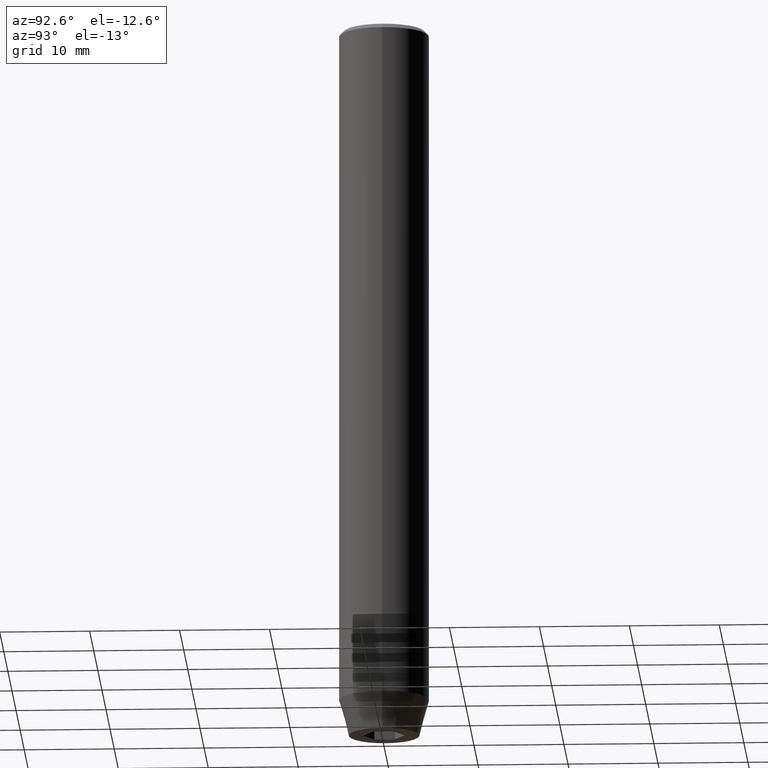
[diagram: clean part render]
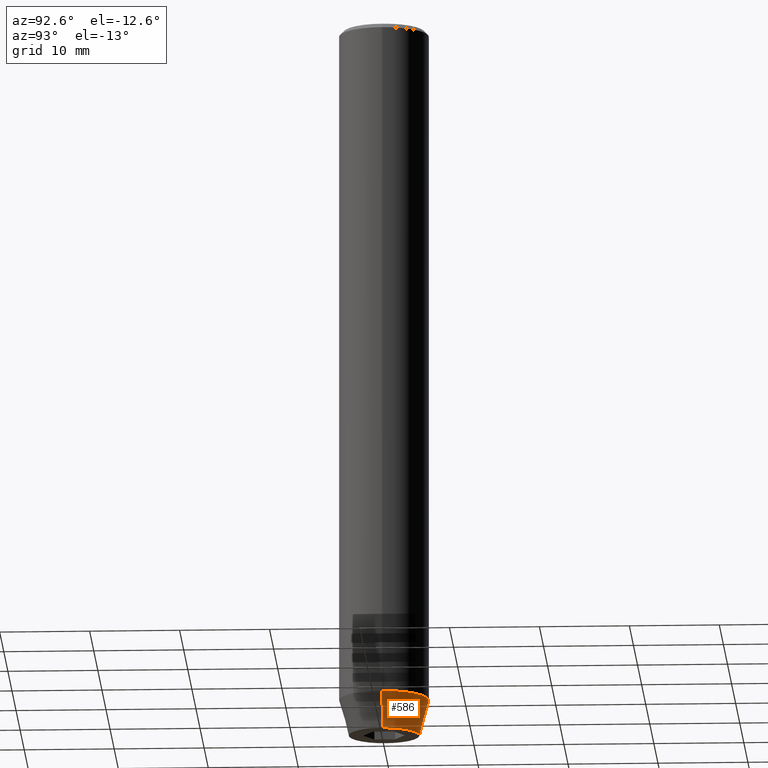
[diagram: same view with one face highlighted and labeled with its STEP entity id]
A machine part, auxiliary view. The second image highlights one B-rep face of the part: STEP entity #586.
In plain terms, the highlighted conical surface has half-angle 15 deg.
Its self-contained STEP definition (entity closure, byte-faithful):
#30 = LINE ( 'NONE', #170, #388 ) ;
#36 = AXIS2_PLACEMENT_3D ( 'NONE', #217, #164, #259 ) ;
#52 = VERTEX_POINT ( 'NONE', #464 ) ;
#70 = ORIENTED_EDGE ( 'NONE', *, *, #312, .T. ) ;
#80 = DIRECTION ( 'NONE',  ( 0.2588190451025205174, 0.000000000000000000, 0.9659258262890684232 ) ) ;
#83 = ORIENTED_EDGE ( 'NONE', *, *, #215, .F. ) ;
#84 = VERTEX_POINT ( 'NONE', #322 ) ;
#93 = ORIENTED_EDGE ( 'NONE', *, *, #372, .F. ) ;
#153 = CARTESIAN_POINT ( 'NONE',  ( 0.000000000000000000, 0.000000000000000000, -76.00000000000001421 ) ) ;
#162 = AXIS2_PLACEMENT_3D ( 'NONE', #325, #232, #192 ) ;
#164 = DIRECTION ( 'NONE',  ( -0.000000000000000000, -0.000000000000000000, 1.000000000000000000 ) ) ;
#170 = CARTESIAN_POINT ( 'NONE',  ( 5.000000000000000000, 0.000000000000000000, -76.00000000000001421 ) ) ;
#183 = CARTESIAN_POINT ( 'NONE',  ( 3.928203230275509661, 0.000000000000000000, -80.00000000000001421 ) ) ;
#192 = DIRECTION ( 'NONE',  ( 1.000000000000000000, 0.000000000000000000, 0.000000000000000000 ) ) ;
#215 = EDGE_CURVE ( 'NONE', #501, #52, #539, .T. ) ;
#217 = CARTESIAN_POINT ( 'NONE',  ( 0.000000000000000000, 0.000000000000000000, -80.00000000000001421 ) ) ;
#232 = DIRECTION ( 'NONE',  ( -0.000000000000000000, -0.000000000000000000, 1.000000000000000000 ) ) ;
#249 = DIRECTION ( 'NONE',  ( 1.000000000000000000, 0.000000000000000000, 0.000000000000000000 ) ) ;
#252 = LINE ( 'NONE', #481, #583 ) ;
#259 = DIRECTION ( 'NONE',  ( 1.000000000000000000, 0.000000000000000000, 0.000000000000000000 ) ) ;
#312 = EDGE_CURVE ( 'NONE', #542, #84, #419, .T. ) ;
#322 = CARTESIAN_POINT ( 'NONE',  ( -3.928203230275509661, 5.466947754046981113E-16, -80.00000000000001421 ) ) ;
#325 = CARTESIAN_POINT ( 'NONE',  ( 0.000000000000000000, 0.000000000000000000, -76.00000000000001421 ) ) ;
#372 = EDGE_CURVE ( 'NONE', #542, #501, #30, .T. ) ;
#376 = DIRECTION ( 'NONE',  ( -0.000000000000000000, -0.000000000000000000, 1.000000000000000000 ) ) ;
#388 = VECTOR ( 'NONE', #80, 1000.000000000000000 ) ;
#401 = EDGE_CURVE ( 'NONE', #84, #52, #252, .T. ) ;
#419 = CIRCLE ( 'NONE', #36, 3.928203230275509661 ) ;
#422 = FACE_OUTER_BOUND ( 'NONE', #473, .T. ) ;
#434 = DIRECTION ( 'NONE',  ( -0.2588190451025205174, 3.169619151431761860E-17, 0.9659258262890684232 ) ) ;
#454 = AXIS2_PLACEMENT_3D ( 'NONE', #153, #376, #249 ) ;
#455 = CARTESIAN_POINT ( 'NONE',  ( 5.000000000000000000, 0.000000000000000000, -76.00000000000001421 ) ) ;
#464 = CARTESIAN_POINT ( 'NONE',  ( -5.000000000000000000, 6.123233995736766282E-16, -76.00000000000001421 ) ) ;
#473 = EDGE_LOOP ( 'NONE', ( #70, #550, #83, #93 ) ) ;
#481 = CARTESIAN_POINT ( 'NONE',  ( -5.000000000000000000, 6.123233995736766282E-16, -76.00000000000001421 ) ) ;
#501 = VERTEX_POINT ( 'NONE', #455 ) ;
#535 = CONICAL_SURFACE ( 'NONE', #162, 5.000000000000000000, 0.2617993877991491858 ) ;
#539 = CIRCLE ( 'NONE', #454, 5.000000000000000000 ) ;
#542 = VERTEX_POINT ( 'NONE', #183 ) ;
#550 = ORIENTED_EDGE ( 'NONE', *, *, #401, .T. ) ;
#583 = VECTOR ( 'NONE', #434, 1000.000000000000000 ) ;
#586 = ADVANCED_FACE ( 'NONE', ( #422 ), #535, .T. ) ;